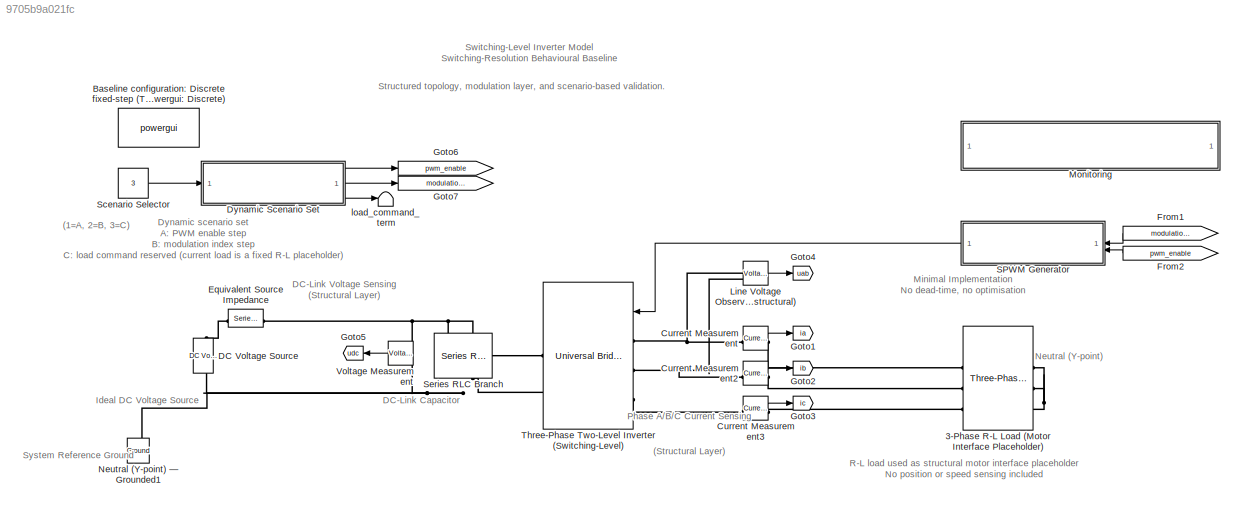
MODEL slx_9705b9a021fc
KIND model
CONFIG AbsTol = auto
CONFIG EnableMultiTasking = off
CONFIG FixedStep = 1e-6
CONFIG MaxStep = 1e-6
CONFIG MinStep = auto
CONFIG RelTol = 1e-3
CONFIG SampleTimeConstraint = Unconstrained
CONFIG SolverName = FixedStepDiscrete
CONFIG StartTime = 0.0
CONFIG StopTime = 0.1
WORKSPACE source: MATLAB code (in-file)
WORKSPACE fsw = 5000
WORKSPACE f_ref = 50
WORKSPACE m_default = 0.3
WORKSPACE m_step_final = 0.5
BLOCK [Reference] 3-Phase R-L Load (Motor Interface Placeholder)  REF=spsThreePhaseSeriesRLCBranchLib/Three-Phase
Series RLC Branch
  AttributesFormatString = \n
  LibrarySourceBlock = sps_lib/Passives/Three-Phase\nSeries RLC Branch
  SourceBlock = spsThreePhaseSeriesRLCBranchLib/Three-Phase\nSeries RLC Branch
  SourceType = Three-Phase Series RLC Branch
BLOCK [Reference] Baseline configuration: Discrete fixed-step (Ts = 1e-6 s) SPS environment (powergui: Discrete)  REF=sps_lib/powergui
  LibrarySourceBlock = sps_lib/powergui
  NameLocation = right
  Priority = 1
  SourceBlock = sps_lib/powergui
  SourceType = PSB option menu block
BLOCK [Reference] Current Measurement  REF=spsCurrentMeasurementLib/Current Measurement
  LibrarySourceBlock = sps_lib/Sensors and Measurements/Current Measurement
  SourceBlock = spsCurrentMeasurementLib/Current Measurement
  SourceType = Current Measurement
  UserDataPersistent = on
BLOCK [Reference] Current Measurement2  REF=spsCurrentMeasurementLib/Current Measurement
  LibrarySourceBlock = sps_lib/Sensors and Measurements/Current Measurement
  SourceBlock = spsCurrentMeasurementLib/Current Measurement
  SourceType = Current Measurement
  UserDataPersistent = on
BLOCK [Reference] Current Measurement3  REF=spsCurrentMeasurementLib/Current Measurement
  LibrarySourceBlock = sps_lib/Sensors and Measurements/Current Measurement
  SourceBlock = spsCurrentMeasurementLib/Current Measurement
  SourceType = Current Measurement
  UserDataPersistent = on
BLOCK [Reference] DC Voltage Source  REF=spsDCVoltageSourceLib/DC Voltage Source
  LibrarySourceBlock = sps_lib/Sources/DC Voltage Source
  SourceBlock = spsDCVoltageSourceLib/DC Voltage Source
  SourceType = DC Voltage Source
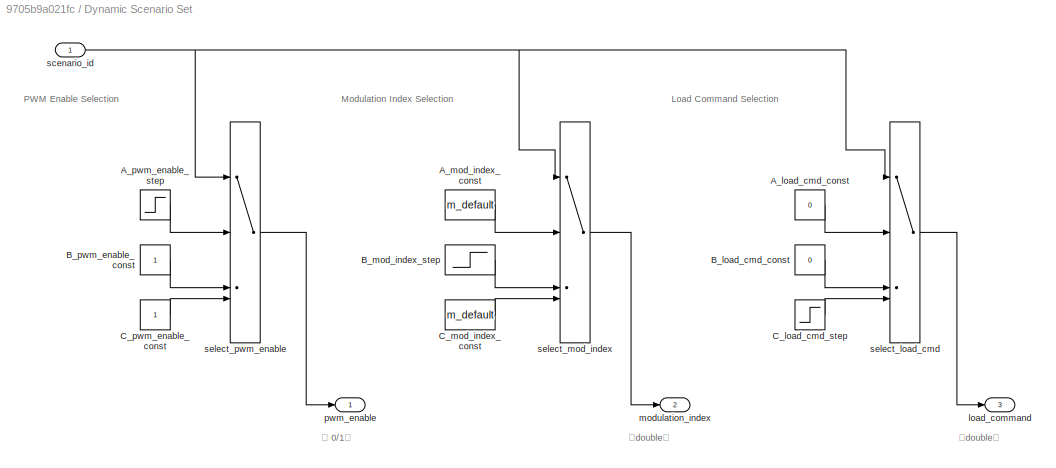
BLOCK [SubSystem] Dynamic Scenario Set
BLOCK [Constant] Dynamic Scenario Set/A_load_cmd_const
  SampleTime = 0
  Value = 0
BLOCK [Constant] Dynamic Scenario Set/A_mod_index_const
  SampleTime = 0
  Value = m_default
BLOCK [Step] Dynamic Scenario Set/A_pwm_enable_step
  SampleTime = 0
  Time = 0.05
BLOCK [Constant] Dynamic Scenario Set/B_load_cmd_const
  SampleTime = 0
  Value = 0
BLOCK [Step] Dynamic Scenario Set/B_mod_index_step
  After = m_step_final
  Before = m_default
  SampleTime = 0
  Time = 0.05
BLOCK [Constant] Dynamic Scenario Set/B_pwm_enable_const
  SampleTime = 0
BLOCK [Step] Dynamic Scenario Set/C_load_cmd_step
  SampleTime = 0
  Time = 0.05
BLOCK [Constant] Dynamic Scenario Set/C_mod_index_const
  SampleTime = 0
  Value = m_default
BLOCK [Constant] Dynamic Scenario Set/C_pwm_enable_const
  SampleTime = 0
BLOCK [Outport] Dynamic Scenario Set/load_command
  Port = 3
BLOCK [Outport] Dynamic Scenario Set/modulation_index
  Port = 2
BLOCK [Outport] Dynamic Scenario Set/pwm_enable
BLOCK [Inport] Dynamic Scenario Set/scenario_id
BLOCK [MultiPortSwitch] Dynamic Scenario Set/select_load_cmd
  DiagnosticForDefault = None
  InputSameDT = off
  SaturateOnIntegerOverflow = off
BLOCK [MultiPortSwitch] Dynamic Scenario Set/select_mod_index
  DiagnosticForDefault = None
  InputSameDT = off
  SaturateOnIntegerOverflow = off
BLOCK [MultiPortSwitch] Dynamic Scenario Set/select_pwm_enable
  DiagnosticForDefault = None
  InputSameDT = off
  SaturateOnIntegerOverflow = off
BLOCK [Reference] Equivalent Source Impedance  REF=spsSeriesRLCBranchLib/Series RLC Branch
  LibrarySourceBlock = sps_lib/Passives/Series RLC Branch
  NameLocation = top
  SourceBlock = spsSeriesRLCBranchLib/Series RLC Branch
  SourceType = Series RLC Branch
BLOCK [From] From1
  GotoTag = modulation_index
  TagVisibility = global
BLOCK [From] From2
  GotoTag = pwm_enable
  TagVisibility = global
BLOCK [Goto] Goto1
  GotoTag = ia
  TagVisibility = global
BLOCK [Goto] Goto2
  GotoTag = ib
  TagVisibility = global
BLOCK [Goto] Goto3
  GotoTag = ic
  TagVisibility = global
BLOCK [Goto] Goto4
  GotoTag = uab
  TagVisibility = global
BLOCK [Goto] Goto5
  GotoTag = udc
  TagVisibility = global
BLOCK [Goto] Goto6
  GotoTag = pwm_enable
  TagVisibility = global
BLOCK [Goto] Goto7
  GotoTag = modulation_index
  TagVisibility = global
BLOCK [Reference] Line Voltage Observation (Non-structural)  REF=spsVoltageMeasurementLib/Voltage Measurement
  LibrarySourceBlock = sps_lib/Sensors and Measurements/Voltage Measurement
  SourceBlock = spsVoltageMeasurementLib/Voltage Measurement
  SourceType = Voltage Measurement
  UserDataPersistent = on
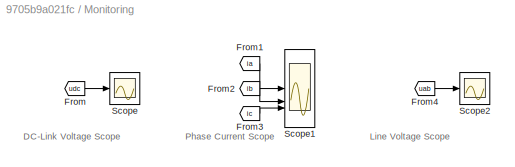
BLOCK [SubSystem] Monitoring
BLOCK [From] Monitoring/From
  GotoTag = udc
  TagVisibility = global
BLOCK [From] Monitoring/From1
  GotoTag = ia
  TagVisibility = global
BLOCK [From] Monitoring/From2
  GotoTag = ib
  TagVisibility = global
BLOCK [From] Monitoring/From3
  GotoTag = ic
  TagVisibility = global
BLOCK [From] Monitoring/From4
  GotoTag = uab
  TagVisibility = global
BLOCK [Scope] Monitoring/Scope
  Floating = off
  NumInputPorts = 1
  ScopeSpecificationString = Simulink.scopes.TimeScopeBlockCfg('CurrentConfiguration', extmgr.ConfigurationSet(extmgr.Configuration('Core','General UI',true),extmgr.Configuration('Core','Source UI',true),extmgr.Configuration('Sources','WiredSimulink',true),extmgr.Configuration('Visuals','Time Domain',true,'SerializedDisplays',{struct('MinYLimReal','399.88727','MaxYLimReal','400.01253','YLabelReal','','MinYLimMag','399.88727',...<+1408ch>
BLOCK [Scope] Monitoring/Scope1
  Floating = off
  NumInputPorts = 3
  ScopeSpecificationString = Simulink.scopes.TimeScopeBlockCfg('CurrentConfiguration', extmgr.ConfigurationSet(extmgr.Configuration('Core','General UI',true),extmgr.Configuration('Core','Source UI',true),extmgr.Configuration('Sources','WiredSimulink',true,'DataLoggingVariableName','ScopeData1'),extmgr.Configuration('Visuals','Time Domain',true,'SerializedDisplays',{struct('MinYLimReal','-14.74575','MaxYLimReal','14.76057','YL...<+1529ch>
BLOCK [Scope] Monitoring/Scope2
  Floating = off
  NumInputPorts = 1
  ScopeSpecificationString = Simulink.scopes.TimeScopeBlockCfg('CurrentConfiguration', extmgr.ConfigurationSet(extmgr.Configuration('Core','General UI',true),extmgr.Configuration('Core','Source UI',true),extmgr.Configuration('Sources','WiredSimulink',true,'DataLoggingVariableName','ScopeData2'),extmgr.Configuration('Visuals','Time Domain',true,'SerializedDisplays',{struct('MinYLimReal','-500.00538','MaxYLimReal','500.00698','...<+1513ch>
BLOCK [Reference] Neutral (Y-point) — Grounded1  REF=spsGroundLib/Ground
  LibrarySourceBlock = sps_lib/Utilities/Ground
  NameLocation = right
  SourceBlock = spsGroundLib/Ground
  SourceType = Ground
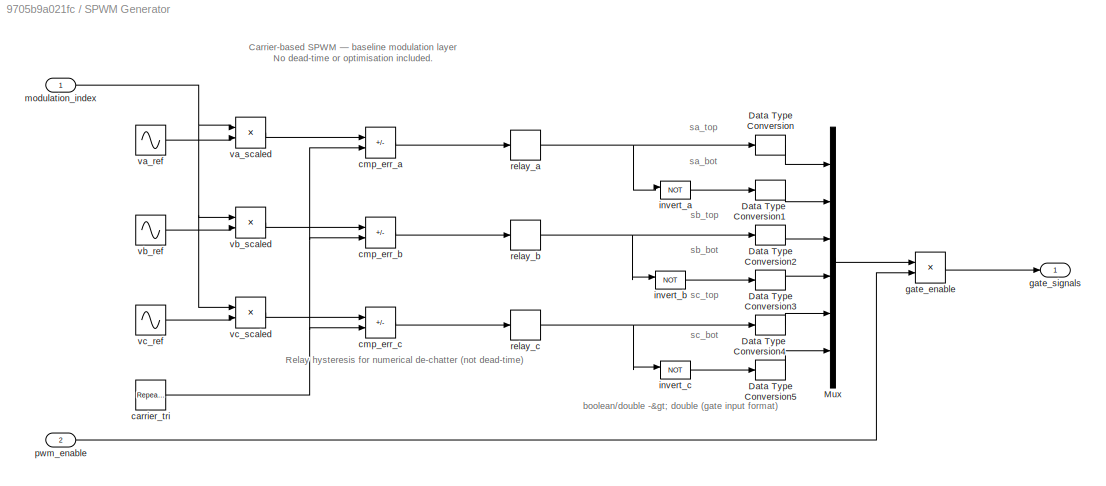
BLOCK [SubSystem] SPWM Generator
BLOCK [DataTypeConversion] SPWM Generator/Data Type Conversion
  OutDataTypeStr = double
  RndMeth = Floor
  SaturateOnIntegerOverflow = off
BLOCK [DataTypeConversion] SPWM Generator/Data Type Conversion1
  OutDataTypeStr = double
  RndMeth = Floor
  SaturateOnIntegerOverflow = off
BLOCK [DataTypeConversion] SPWM Generator/Data Type Conversion2
  OutDataTypeStr = double
  RndMeth = Floor
  SaturateOnIntegerOverflow = off
BLOCK [DataTypeConversion] SPWM Generator/Data Type Conversion3
  OutDataTypeStr = double
  RndMeth = Floor
  SaturateOnIntegerOverflow = off
BLOCK [DataTypeConversion] SPWM Generator/Data Type Conversion4
  OutDataTypeStr = double
  RndMeth = Floor
  SaturateOnIntegerOverflow = off
BLOCK [DataTypeConversion] SPWM Generator/Data Type Conversion5
  OutDataTypeStr = double
  RndMeth = Floor
  SaturateOnIntegerOverflow = off
BLOCK [Mux] SPWM Generator/Mux
  DisplayOption = bar
  Inputs = 6
BLOCK [Reference] SPWM Generator/carrier_tri  REF=simulink/Sources/Repeating
Sequence
  SourceBlock = simulink/Sources/Repeating\nSequence
  SourceType = Repeating table
BLOCK [Sum] SPWM Generator/cmp_err_a
  IconShape = rectangular
  Inputs = +-
BLOCK [Sum] SPWM Generator/cmp_err_b
  IconShape = rectangular
  Inputs = +-
BLOCK [Sum] SPWM Generator/cmp_err_c
  IconShape = rectangular
  Inputs = +-
BLOCK [Product] SPWM Generator/gate_enable
BLOCK [Outport] SPWM Generator/gate_signals
BLOCK [Logic] SPWM Generator/invert_a
  AllPortsSameDT = off
  Operator = NOT
  OutDataTypeStr = boolean
BLOCK [Logic] SPWM Generator/invert_b
  AllPortsSameDT = off
  Operator = NOT
  OutDataTypeStr = boolean
BLOCK [Logic] SPWM Generator/invert_c
  AllPortsSameDT = off
  Operator = NOT
  OutDataTypeStr = boolean
BLOCK [Inport] SPWM Generator/modulation_index
BLOCK [Inport] SPWM Generator/pwm_enable
  Port = 2
BLOCK [Relay] SPWM Generator/relay_a
  OffSwitchValue = -1e-8
  OnSwitchValue = 1e-8
BLOCK [Relay] SPWM Generator/relay_b
  OffSwitchValue = -1e-8
  OnSwitchValue = 1e-8
BLOCK [Relay] SPWM Generator/relay_c
  OffSwitchValue = -1e-8
  OnSwitchValue = 1e-8
BLOCK [Sin] SPWM Generator/va_ref
  Frequency = 2*pi*f_ref
  SampleTime = 0
BLOCK [Product] SPWM Generator/va_scaled
BLOCK [Sin] SPWM Generator/vb_ref
  Frequency = 2*pi*f_ref
  Phase = -2*pi/3
  SampleTime = 0
BLOCK [Product] SPWM Generator/vb_scaled
BLOCK [Sin] SPWM Generator/vc_ref
  Frequency = 2*pi*f_ref
  Phase = 2*pi/3
  SampleTime = 0
BLOCK [Product] SPWM Generator/vc_scaled
BLOCK [Constant] Scenario Selector
  SampleTime = 0
  Value = 3
BLOCK [Reference] Series RLC Branch  REF=spsSeriesRLCBranchLib/Series RLC Branch
  LibrarySourceBlock = sps_lib/Passives/Series RLC Branch
  NameLocation = left
  SourceBlock = spsSeriesRLCBranchLib/Series RLC Branch
  SourceType = Series RLC Branch
BLOCK [Reference] Three-Phase Two-Level Inverter (Switching-Level)  REF=spsUniversalBridgeLib/Universal Bridge
  LibrarySourceBlock = sps_lib/Power Electronics/Universal Bridge
  SourceBlock = spsUniversalBridgeLib/Universal Bridge
  SourceType = Universal Bridge
BLOCK [Reference] Voltage Measurement  REF=spsVoltageMeasurementLib/Voltage Measurement
  LibrarySourceBlock = sps_lib/Sensors and Measurements/Voltage Measurement
  SourceBlock = spsVoltageMeasurementLib/Voltage Measurement
  SourceType = Voltage Measurement
  UserDataPersistent = on
BLOCK [Terminator] load_command_term
  NameLocation = right
ANNOTATION (root): DC-Link Capacitor
ANNOTATION (root): DC-Link Voltage Sensing (Structural Layer)
ANNOTATION (root): Ideal DC Voltage Source
ANNOTATION (root): Neutral (Y-point)
ANNOTATION (root): Phase A/B/C Current Sensing (Structural Layer)
ANNOTATION (root): Structured topology, modulation layer, and scenario-based validation.
ANNOTATION (root): Switching-Level Inverter Model Switching-Resolution Behavioural Baseline
ANNOTATION (root): R-L load used as structural motor interface placeholder No position or speed sensing included
ANNOTATION (root): (1=A, 2=B, 3=C)
ANNOTATION (root): System Reference Ground
ANNOTATION (root): Dynamic scenario set A: PWM enable step B: modulation index step C: load command reserved (current load is a fixed R-L placeholder)
ANNOTATION (root): Minimal Implementation No dead-time, no optimisation
ANNOTATION Dynamic Scenario Set: （ 0/1）
ANNOTATION Dynamic Scenario Set: （double）
ANNOTATION Dynamic Scenario Set: Load Command Selection
ANNOTATION Dynamic Scenario Set: Modulation Index Selection
ANNOTATION Dynamic Scenario Set: PWM Enable Selection
ANNOTATION Monitoring: DC-Link Voltage Scope
ANNOTATION Monitoring: Line Voltage Scope
ANNOTATION Monitoring: Phase Current Scope
ANNOTATION SPWM Generator: sa_bot
ANNOTATION SPWM Generator: sa_top
ANNOTATION SPWM Generator: sb_bot
ANNOTATION SPWM Generator: sb_top
ANNOTATION SPWM Generator: sc_bot
ANNOTATION SPWM Generator: sc_top
ANNOTATION SPWM Generator: Carrier-based SPWM — baseline modulation layer No dead-time or optimisation included.
ANNOTATION SPWM Generator: Relay hysteresis for numerical de-chatter (not dead-time)
ANNOTATION SPWM Generator: boolean/double -> double (gate input format)
LINE Current Measurement2:1 -> Goto2:1
LINE Current Measurement3:1 -> Goto3:1
LINE Current Measurement:1 -> Goto1:1
LINE Dynamic Scenario Set/A_load_cmd_const:1 -> Dynamic Scenario Set/select_load_cmd:2
LINE Dynamic Scenario Set/A_mod_index_const:1 -> Dynamic Scenario Set/select_mod_index:2
LINE Dynamic Scenario Set/A_pwm_enable_step:1 -> Dynamic Scenario Set/select_pwm_enable:2
LINE Dynamic Scenario Set/B_load_cmd_const:1 -> Dynamic Scenario Set/select_load_cmd:3
LINE Dynamic Scenario Set/B_mod_index_step:1 -> Dynamic Scenario Set/select_mod_index:3
LINE Dynamic Scenario Set/B_pwm_enable_const:1 -> Dynamic Scenario Set/select_pwm_enable:3
LINE Dynamic Scenario Set/C_load_cmd_step:1 -> Dynamic Scenario Set/select_load_cmd:4
LINE Dynamic Scenario Set/C_mod_index_const:1 -> Dynamic Scenario Set/select_mod_index:4
LINE Dynamic Scenario Set/C_pwm_enable_const:1 -> Dynamic Scenario Set/select_pwm_enable:4
NET Dynamic Scenario Set/scenario_id:1 -> Dynamic Scenario Set/select_load_cmd:1, Dynamic Scenario Set/select_mod_index:1, Dynamic Scenario Set/select_pwm_enable:1
LINE Dynamic Scenario Set/select_load_cmd:1 -> Dynamic Scenario Set/load_command:1
LINE Dynamic Scenario Set/select_mod_index:1 -> Dynamic Scenario Set/modulation_index:1
LINE Dynamic Scenario Set/select_pwm_enable:1 -> Dynamic Scenario Set/pwm_enable:1
LINE Dynamic Scenario Set:1 -> Goto6:1
LINE Dynamic Scenario Set:2 -> Goto7:1
LINE Dynamic Scenario Set:3 -> load_command_term:1
LINE From1:1 -> SPWM Generator:1
LINE From2:1 -> SPWM Generator:2
LINE Line Voltage Observation (Non-structural):1 -> Goto4:1
LINE Monitoring/From1:1 -> Monitoring/Scope1:1
LINE Monitoring/From2:1 -> Monitoring/Scope1:2
LINE Monitoring/From3:1 -> Monitoring/Scope1:3
LINE Monitoring/From4:1 -> Monitoring/Scope2:1
LINE Monitoring/From:1 -> Monitoring/Scope:1
LINE SPWM Generator/Data Type Conversion1:1 -> SPWM Generator/Mux:2
LINE SPWM Generator/Data Type Conversion2:1 -> SPWM Generator/Mux:3
LINE SPWM Generator/Data Type Conversion3:1 -> SPWM Generator/Mux:4
LINE SPWM Generator/Data Type Conversion4:1 -> SPWM Generator/Mux:5
LINE SPWM Generator/Data Type Conversion5:1 -> SPWM Generator/Mux:6
LINE SPWM Generator/Data Type Conversion:1 -> SPWM Generator/Mux:1
LINE SPWM Generator/Mux:1 -> SPWM Generator/gate_enable:1
NET SPWM Generator/carrier_tri:1 -> SPWM Generator/cmp_err_a:2, SPWM Generator/cmp_err_b:2, SPWM Generator/cmp_err_c:2
LINE SPWM Generator/cmp_err_a:1 -> SPWM Generator/relay_a:1
LINE SPWM Generator/cmp_err_b:1 -> SPWM Generator/relay_b:1
LINE SPWM Generator/cmp_err_c:1 -> SPWM Generator/relay_c:1
LINE SPWM Generator/gate_enable:1 -> SPWM Generator/gate_signals:1
LINE SPWM Generator/invert_a:1 -> SPWM Generator/Data Type Conversion1:1
LINE SPWM Generator/invert_b:1 -> SPWM Generator/Data Type Conversion3:1
LINE SPWM Generator/invert_c:1 -> SPWM Generator/Data Type Conversion5:1
NET SPWM Generator/modulation_index:1 -> SPWM Generator/va_scaled:1, SPWM Generator/vb_scaled:1, SPWM Generator/vc_scaled:1
LINE SPWM Generator/pwm_enable:1 -> SPWM Generator/gate_enable:2
NET SPWM Generator/relay_a:1 -> SPWM Generator/Data Type Conversion:1, SPWM Generator/invert_a:1
NET SPWM Generator/relay_b:1 -> SPWM Generator/Data Type Conversion2:1, SPWM Generator/invert_b:1
NET SPWM Generator/relay_c:1 -> SPWM Generator/Data Type Conversion4:1, SPWM Generator/invert_c:1
LINE SPWM Generator/va_ref:1 -> SPWM Generator/va_scaled:2
LINE SPWM Generator/va_scaled:1 -> SPWM Generator/cmp_err_a:1
LINE SPWM Generator/vb_ref:1 -> SPWM Generator/vb_scaled:2
LINE SPWM Generator/vb_scaled:1 -> SPWM Generator/cmp_err_b:1
LINE SPWM Generator/vc_ref:1 -> SPWM Generator/vc_scaled:2
LINE SPWM Generator/vc_scaled:1 -> SPWM Generator/cmp_err_c:1
LINE SPWM Generator:1 -> Three-Phase Two-Level Inverter (Switching-Level):1
LINE Scenario Selector:1 -> Dynamic Scenario Set:1
LINE Voltage Measurement:1 -> Goto5:1
PLINE 3-Phase R-L Load (Motor Interface Placeholder):LConn1 -- Current Measurement:RConn1
PLINE 3-Phase R-L Load (Motor Interface Placeholder):LConn2 -- Current Measurement2:RConn1
PLINE 3-Phase R-L Load (Motor Interface Placeholder):LConn3 -- Current Measurement3:RConn1
PNET net1: 3-Phase R-L Load (Motor Interface Placeholder):RConn1 -- 3-Phase R-L Load (Motor Interface Placeholder):RConn2 -- 3-Phase R-L Load (Motor Interface Placeholder):RConn3
PNET net2: Current Measurement2:LConn1 -- Line Voltage Observation (Non-structural):LConn2 -- Three-Phase Two-Level Inverter (Switching-Level):LConn2
PLINE Current Measurement3:LConn1 -- Three-Phase Two-Level Inverter (Switching-Level):LConn3
PNET net3: Current Measurement:LConn1 -- Line Voltage Observation (Non-structural):LConn1 -- Three-Phase Two-Level Inverter (Switching-Level):LConn1
PNET net4: DC Voltage Source:LConn1 -- Neutral (Y-point) — Grounded1:LConn1 -- Series RLC Branch:RConn1 -- Three-Phase Two-Level Inverter (Switching-Level):RConn2 -- Voltage Measurement:LConn2
PLINE DC Voltage Source:RConn1 -- Equivalent Source Impedance:RConn1
PNET net5: Equivalent Source Impedance:LConn1 -- Series RLC Branch:LConn1 -- Three-Phase Two-Level Inverter (Switching-Level):RConn1 -- Voltage Measurement:LConn1
note: NET lines group one-source signal fan-out (src -> all destinations, sorted); 1:1 wires keep LINE; PNET lines group multi-terminal physical nets as a canonical sorted terminal list (undirected conserving connections); 2-terminal nets keep the pairwise PLINE form
